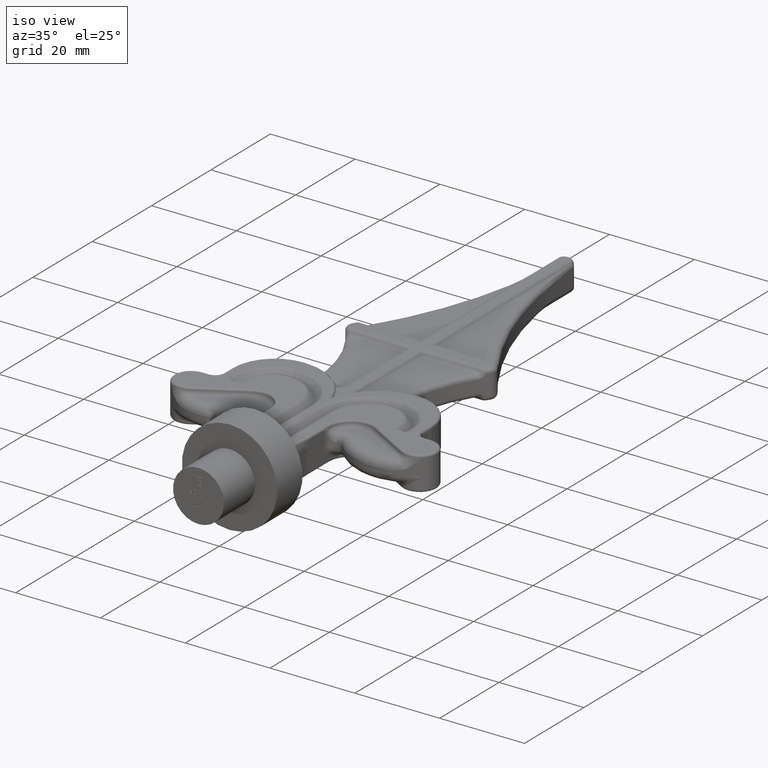
[diagram: clean part render]
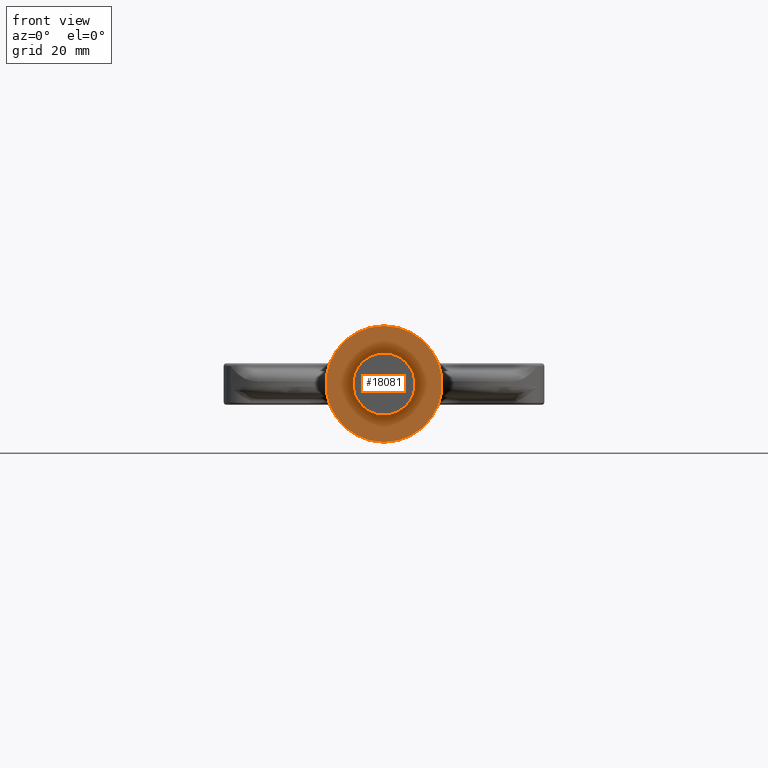
[diagram: tour spotlight — one face highlighted and labeled with its STEP entity id]
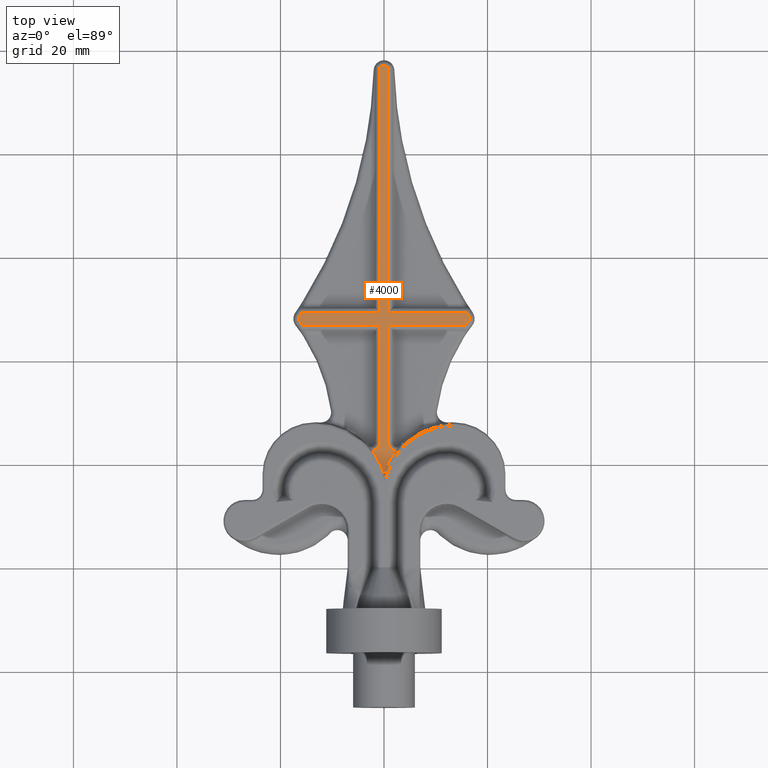
[diagram: tour spotlight — one face highlighted and labeled with its STEP entity id]
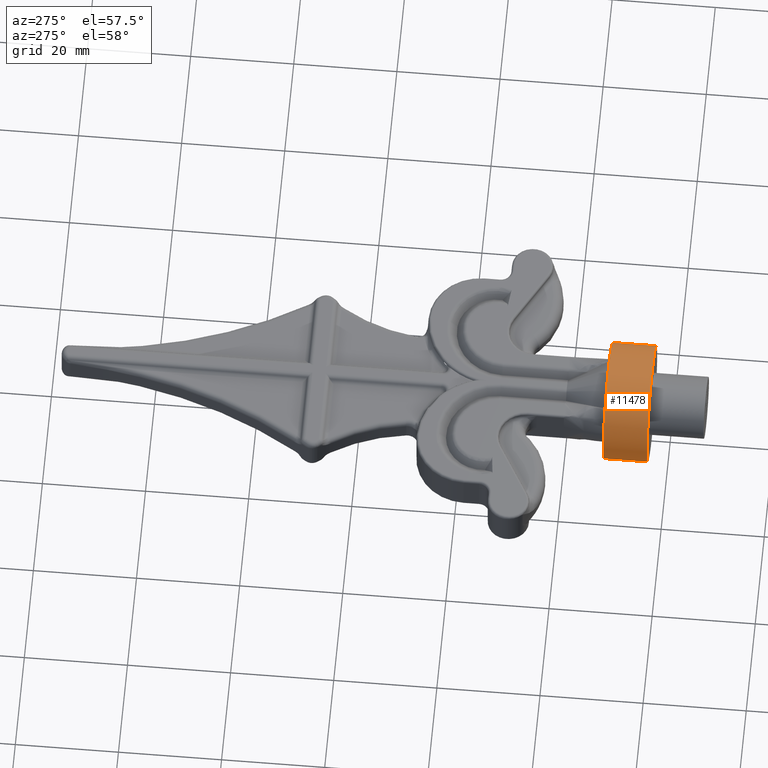
[diagram: tour spotlight — one face highlighted and labeled with its STEP entity id]
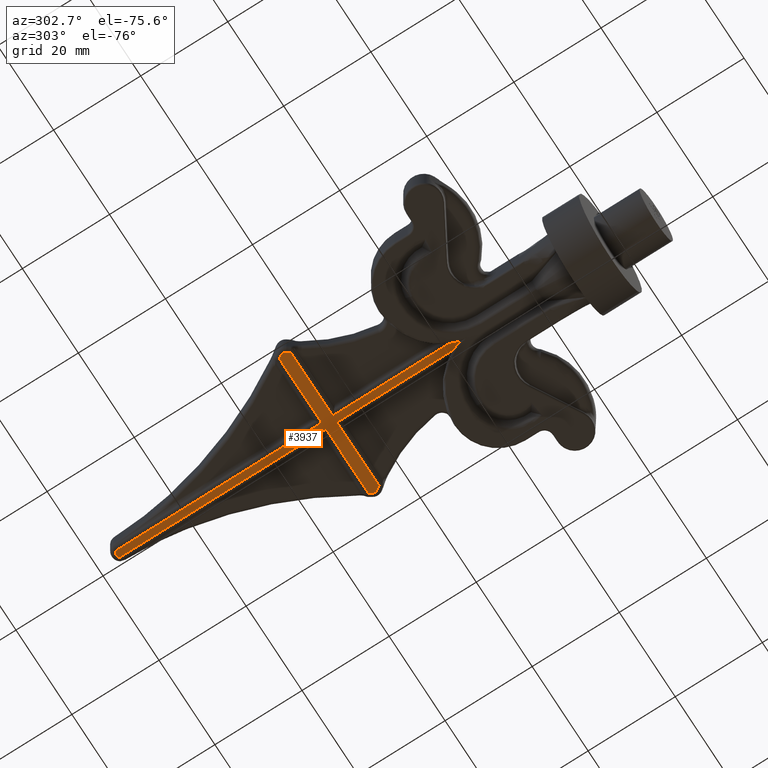
[diagram: tour spotlight — one face highlighted and labeled with its STEP entity id]
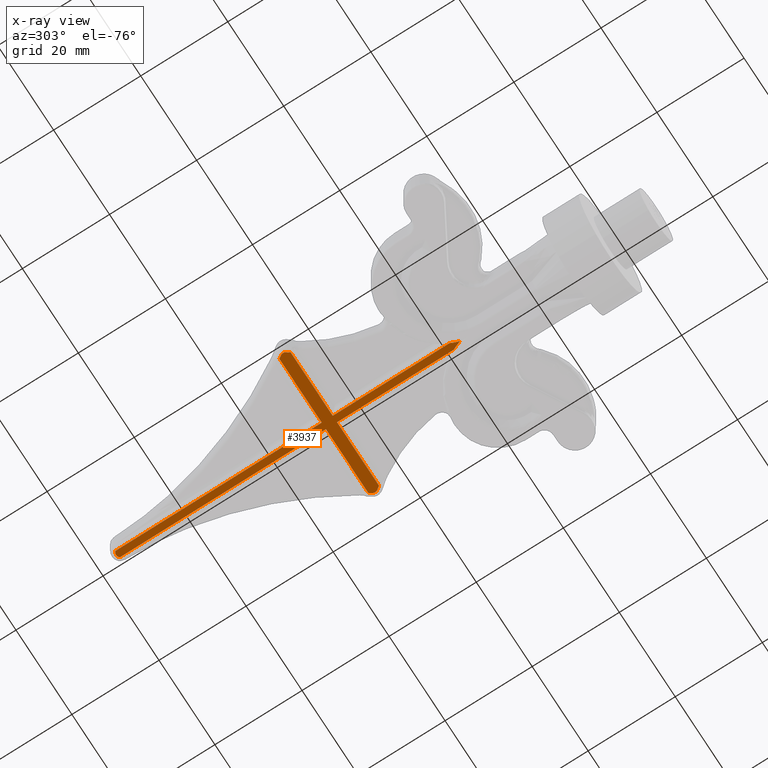
[diagram: x-ray of the same camera — body ghosted, this tour face saturated]
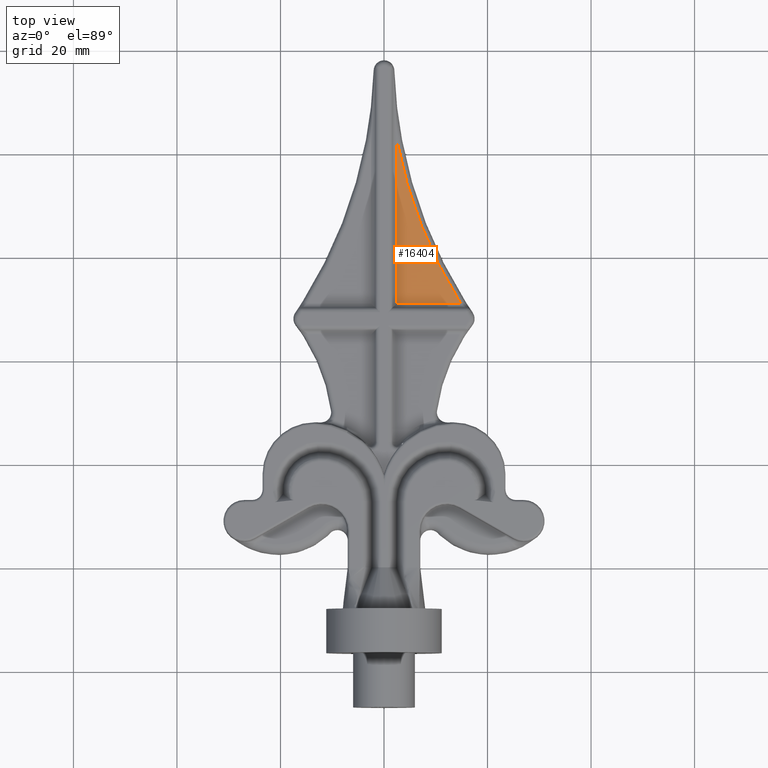
[diagram: tour spotlight — one face highlighted and labeled with its STEP entity id]
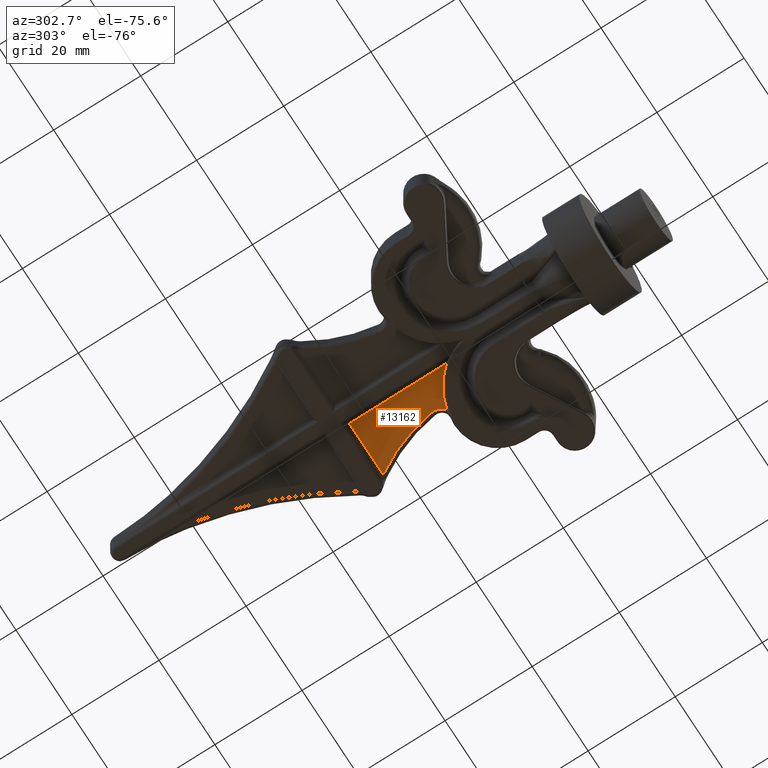
[diagram: tour spotlight — one face highlighted and labeled with its STEP entity id]
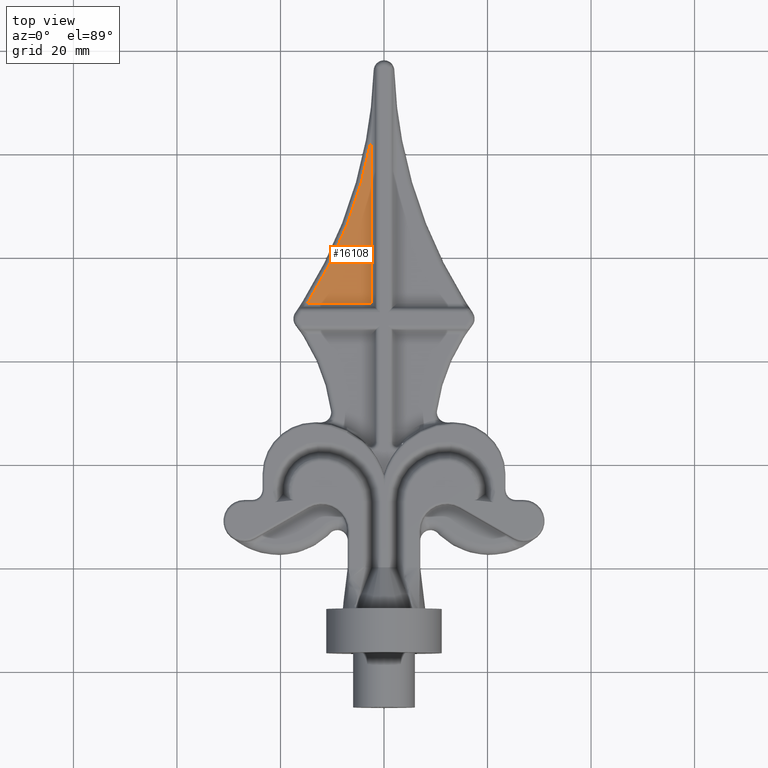
[diagram: tour spotlight — one face highlighted and labeled with its STEP entity id]
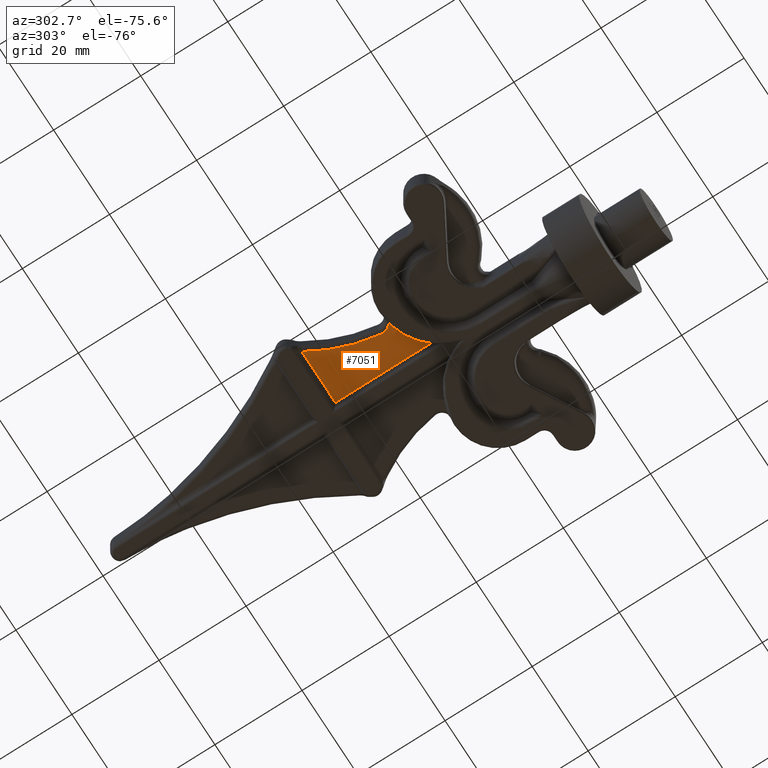
[diagram: tour spotlight — one face highlighted and labeled with its STEP entity id]
A machine part: a face-by-face anatomy tour. The part has 496 B-rep faces; the first image is the clean iso view, then the 8 largest visible faces are spotlighted one at a time (largest first), each with its STEP entity span.

Face 1 — front view, entity #18081. In plain terms, the highlighted planar face has unit normal (0, -1, 0).
Definition (entity closure, byte-faithful):
#1578 = AXIS2_PLACEMENT_3D ( 'NONE', #10821, #6553, #17103 ) ;
#1645 = EDGE_CURVE ( 'NONE', #5692, #5692, #17644, .T. ) ;
#1999 = FACE_BOUND ( 'NONE', #15357, .T. ) ;
#5224 = CARTESIAN_POINT ( 'NONE',  ( 0.000000000000000000, -16.50000000000000000, 0.000000000000000000 ) ) ;
#5692 = VERTEX_POINT ( 'NONE', #6911 ) ;
#6341 = CARTESIAN_POINT ( 'NONE',  ( 0.000000000000000000, -16.50000000000000000, 0.000000000000000000 ) ) ;
#6553 = DIRECTION ( 'NONE',  ( 0.000000000000000000, -1.000000000000000000, 0.000000000000000000 ) ) ;
#6911 = CARTESIAN_POINT ( 'NONE',  ( 0.000000000000000000, -16.50000000000000000, -6.000000000000000888 ) ) ;
#9917 = CIRCLE ( 'NONE', #13263, 11.25000000000000178 ) ;
#10821 = CARTESIAN_POINT ( 'NONE',  ( 0.000000000000000000, -16.50000000000000000, 0.000000000000000000 ) ) ;
#12764 = CARTESIAN_POINT ( 'NONE',  ( 0.000000000000000000, -16.50000000000000000, -11.25000000000000178 ) ) ;
#12788 = FACE_OUTER_BOUND ( 'NONE', #15167, .T. ) ;
#13263 = AXIS2_PLACEMENT_3D ( 'NONE', #6341, #15585, #15378 ) ;
#14295 = DIRECTION ( 'NONE',  ( 0.000000000000000000, -1.000000000000000000, 0.000000000000000000 ) ) ;
#14415 = PLANE ( 'NONE',  #18623 ) ;
#14824 = EDGE_CURVE ( 'NONE', #16771, #16771, #9917, .T. ) ;
#15167 = EDGE_LOOP ( 'NONE', ( #16647 ) ) ;
#15357 = EDGE_LOOP ( 'NONE', ( #18399 ) ) ;
#15378 = DIRECTION ( 'NONE',  ( 0.000000000000000000, 0.000000000000000000, -1.000000000000000000 ) ) ;
#15585 = DIRECTION ( 'NONE',  ( 0.000000000000000000, -1.000000000000000000, 0.000000000000000000 ) ) ;
#15823 = DIRECTION ( 'NONE',  ( 0.000000000000000000, -0.000000000000000000, -1.000000000000000000 ) ) ;
#16647 = ORIENTED_EDGE ( 'NONE', *, *, #14824, .T. ) ;
#16771 = VERTEX_POINT ( 'NONE', #12764 ) ;
#17103 = DIRECTION ( 'NONE',  ( 0.000000000000000000, 0.000000000000000000, -1.000000000000000000 ) ) ;
#17644 = CIRCLE ( 'NONE', #1578, 6.000000000000000888 ) ;
#18081 = ADVANCED_FACE ( 'NONE', ( #1999, #12788 ), #14415, .T. ) ;
#18399 = ORIENTED_EDGE ( 'NONE', *, *, #1645, .F. ) ;
#18623 = AXIS2_PLACEMENT_3D ( 'NONE', #5224, #14295, #15823 ) ;

Face 2 — top view, entity #4000. In plain terms, the highlighted planar face has unit normal (0, 0, 1).
Definition (entity closure, byte-faithful):
#152 = ORIENTED_EDGE ( 'NONE', *, *, #443, .T. ) ;
#201 = CARTESIAN_POINT ( 'NONE',  ( 16.46731085266415562, 46.77746172511388068, 3.500000000000000000 ) ) ;
#213 = LINE ( 'NONE', #8870, #4681 ) ;
#324 = CARTESIAN_POINT ( 'NONE',  ( 15.76184488787160021, 46.77746172511388068, 3.500000000000000000 ) ) ;
#443 = EDGE_CURVE ( 'NONE', #5529, #1710, #1481, .T. ) ;
#472 = CARTESIAN_POINT ( 'NONE',  ( -16.29608303855921037, 47.49860504358699842, 3.500000000000000000 ) ) ;
#557 = LINE ( 'NONE', #9453, #11545 ) ;
#622 = VERTEX_POINT ( 'NONE', #5714 ) ;
#625 = ORIENTED_EDGE ( 'NONE', *, *, #8301, .T. ) ;
#628 = LINE ( 'NONE', #9689, #5081 ) ;
#800 = CARTESIAN_POINT ( 'NONE',  ( -15.76184488787159665, 46.77746172511387357, 3.500000000000000000 ) ) ;
#817 = AXIS2_PLACEMENT_3D ( 'NONE', #5077, #6425, #3512 ) ;
#1053 = DIRECTION ( 'NONE',  ( 1.000000000000000000, 0.000000000000000000, 0.000000000000000000 ) ) ;
#1084 = CIRCLE ( 'NONE', #817, 1.000000000000009548 ) ;
#1163 = VERTEX_POINT ( 'NONE', #4331 ) ;
#1174 = VECTOR ( 'NONE', #9763, 1000.000000000000000 ) ;
#1207 = CARTESIAN_POINT ( 'NONE',  ( -16.33004306381300808, 48.66149175172508023, 3.500000000000000000 ) ) ;
#1210 = AXIS2_PLACEMENT_3D ( 'NONE', #13090, #8823, #14820 ) ;
#1288 = EDGE_CURVE ( 'NONE', #14423, #8830, #6823, .T. ) ;
#1358 = EDGE_CURVE ( 'NONE', #9479, #8669, #9876, .T. ) ;
#1365 = CARTESIAN_POINT ( 'NONE',  ( 45.10441830320194612, 25.59832475904494942, 3.500000000000000000 ) ) ;
#1481 = CIRCLE ( 'NONE', #4298, 90.51719354643033455 ) ;
#1710 = VERTEX_POINT ( 'NONE', #12409 ) ;
#1824 = CIRCLE ( 'NONE', #3074, 1.732050807568877415 ) ;
#1959 = ORIENTED_EDGE ( 'NONE', *, *, #11768, .T. ) ;
#1967 = ORIENTED_EDGE ( 'NONE', *, *, #15068, .T. ) ;
#2336 = DIRECTION ( 'NONE',  ( -0.000000000000000000, -0.000000000000000000, -1.000000000000000000 ) ) ;
#2467 = DIRECTION ( 'NONE',  ( 0.000000000000000000, 0.000000000000000000, 1.000000000000000000 ) ) ;
#2765 = CARTESIAN_POINT ( 'NONE',  ( -0.7679491924311232509, 24.28074325754674234, 3.500000000000000000 ) ) ;
#3074 = AXIS2_PLACEMENT_3D ( 'NONE', #14694, #5733, #1053 ) ;
#3233 = CARTESIAN_POINT ( 'NONE',  ( 0.7679491924311226958, 46.04541091754499860, 3.500000000000000000 ) ) ;
#3353 = CARTESIAN_POINT ( 'NONE',  ( 15.50000000000000711, 48.10379244903953122, 3.500000000000000000 ) ) ;
#3418 = EDGE_CURVE ( 'NONE', #7647, #622, #213, .T. ) ;
#3494 = CARTESIAN_POINT ( 'NONE',  ( 2.500000000000000444, 24.28074325754674234, 3.500000000000000000 ) ) ;
#3512 = DIRECTION ( 'NONE',  ( 1.000000000000000000, 0.000000000000000000, 0.000000000000000000 ) ) ;
#3537 = EDGE_CURVE ( 'NONE', #1163, #14423, #16682, .T. ) ;
#3630 = CIRCLE ( 'NONE', #11472, 14.05394023361774813 ) ;
#3655 = CARTESIAN_POINT ( 'NONE',  ( 0.000000000000000000, 18.00000000000000355, 3.500000000000000000 ) ) ;
#3818 = DIRECTION ( 'NONE',  ( 1.000000000000000000, 0.000000000000000000, 0.000000000000000000 ) ) ;
#4000 = ADVANCED_FACE ( 'NONE', ( #13586 ), #7235, .T. ) ;
#4298 = AXIS2_PLACEMENT_3D ( 'NONE', #6976, #10115, #9927 ) ;
#4331 = CARTESIAN_POINT ( 'NONE',  ( 2.341040345879629392, 22.55600216730683627, 3.500000000000000000 ) ) ;
#4681 = VECTOR ( 'NONE', #16195, 1000.000000000000000 ) ;
#4751 = CARTESIAN_POINT ( 'NONE',  ( 0.7679491924311226958, 24.28074325754674234, 3.500000000000000000 ) ) ;
#4958 = EDGE_CURVE ( 'NONE', #16523, #16259, #557, .T. ) ;
#5077 = CARTESIAN_POINT ( 'NONE',  ( 0.000000000000000000, 96.00000000000000000, 3.500000000000000000 ) ) ;
#5081 = VECTOR ( 'NONE', #5311, 1000.000000000000000 ) ;
#5125 = CARTESIAN_POINT ( 'NONE',  ( 1.500000000000000666, 49.31336010997613784, 3.500000000000000000 ) ) ;
#5277 = ORIENTED_EDGE ( 'NONE', *, *, #7619, .T. ) ;
#5311 = DIRECTION ( 'NONE',  ( -1.000000000000000000, 0.000000000000000000, 0.000000000000000000 ) ) ;
#5331 = ORIENTED_EDGE ( 'NONE', *, *, #7507, .T. ) ;
#5391 = CIRCLE ( 'NONE', #16236, 90.51719354643033455 ) ;
#5474 = CARTESIAN_POINT ( 'NONE',  ( 0.7679491924311226958, 46.77746172511388068, 3.500000000000000000 ) ) ;
#5529 = VERTEX_POINT ( 'NONE', #17670 ) ;
#5698 = ORIENTED_EDGE ( 'NONE', *, *, #9197, .T. ) ;
#5714 = CARTESIAN_POINT ( 'NONE',  ( -0.7679491924311224738, 49.31336010997613784, 3.500000000000000000 ) ) ;
#5733 = DIRECTION ( 'NONE',  ( -0.000000000000000000, -0.000000000000000000, -1.000000000000000000 ) ) ;
#6248 = VERTEX_POINT ( 'NONE', #19322 ) ;
#6319 = AXIS2_PLACEMENT_3D ( 'NONE', #3494, #15448, #13977 ) ;
#6425 = DIRECTION ( 'NONE',  ( 0.000000000000000000, 0.000000000000000000, 1.000000000000000000 ) ) ;
#6476 = DIRECTION ( 'NONE',  ( -0.000000000000000000, -0.000000000000000000, -1.000000000000000000 ) ) ;
#6758 = CARTESIAN_POINT ( 'NONE',  ( 13.46148123164811494, 13.96245629867796900, 3.500000000000000000 ) ) ;
#6823 = LINE ( 'NONE', #3233, #17195 ) ;
#6976 = CARTESIAN_POINT ( 'NONE',  ( 91.46321172284538648, 99.14286747362201879, 3.500000000000000000 ) ) ;
#7106 = AXIS2_PLACEMENT_3D ( 'NONE', #11549, #2467, #17439 ) ;
#7235 = PLANE ( 'NONE',  #1210 ) ;
#7358 = LINE ( 'NONE', #201, #9236 ) ;
#7496 = DIRECTION ( 'NONE',  ( -0.000000000000000000, -0.000000000000000000, -1.000000000000000000 ) ) ;
#7507 = EDGE_CURVE ( 'NONE', #11642, #6248, #15518, .T. ) ;
#7576 = ORIENTED_EDGE ( 'NONE', *, *, #13487, .T. ) ;
#7619 = EDGE_CURVE ( 'NONE', #19109, #14692, #5391, .T. ) ;
#7647 = VERTEX_POINT ( 'NONE', #15338 ) ;
#7916 = LINE ( 'NONE', #5125, #17583 ) ;
#7978 = DIRECTION ( 'NONE',  ( 0.000000000000000000, 1.000000000000000000, -0.000000000000000000 ) ) ;
#8042 = ORIENTED_EDGE ( 'NONE', *, *, #15874, .T. ) ;
#8204 = EDGE_LOOP ( 'NONE', ( #10850, #11542, #8367, #1959, #5277, #8042, #12306, #625, #1967, #11510, #16720, #7576, #17995, #15695, #18011, #5331, #13439, #152, #5698 ) ) ;
#8301 = EDGE_CURVE ( 'NONE', #17518, #10579, #8417, .T. ) ;
#8367 = ORIENTED_EDGE ( 'NONE', *, *, #3418, .T. ) ;
#8393 = CARTESIAN_POINT ( 'NONE',  ( 0.7679491924311226958, 96.64051076325414158, 3.500000000000000000 ) ) ;
#8417 = LINE ( 'NONE', #15784, #1174 ) ;
#8669 = VERTEX_POINT ( 'NONE', #3655 ) ;
#8823 = DIRECTION ( 'NONE',  ( 0.000000000000000000, 0.000000000000000000, 1.000000000000000000 ) ) ;
#8830 = VERTEX_POINT ( 'NONE', #5474 ) ;
#8870 = CARTESIAN_POINT ( 'NONE',  ( -0.7679491924311224738, 50.04541091754501991, 3.500000000000000000 ) ) ;
#8988 = DIRECTION ( 'NONE',  ( 1.000000000000000000, -0.000000000000000000, 0.000000000000000000 ) ) ;
#9080 = AXIS2_PLACEMENT_3D ( 'NONE', #3353, #13849, #17997 ) ;
#9197 = EDGE_CURVE ( 'NONE', #1710, #16523, #7916, .T. ) ;
#9236 = VECTOR ( 'NONE', #8988, 1000.000000000000000 ) ;
#9292 = CIRCLE ( 'NONE', #7106, 1.000000000000013101 ) ;
#9293 = EDGE_CURVE ( 'NONE', #9359, #17518, #19481, .T. ) ;
#9359 = VERTEX_POINT ( 'NONE', #472 ) ;
#9394 = DIRECTION ( 'NONE',  ( -1.375964864225493937E-17, 1.000000000000000000, 0.000000000000000000 ) ) ;
#9453 = CARTESIAN_POINT ( 'NONE',  ( 0.7679491924311226958, 97.32287565553231445, 3.500000000000000000 ) ) ;
#9479 = VERTEX_POINT ( 'NONE', #9821 ) ;
#9689 = CARTESIAN_POINT ( 'NONE',  ( -16.61157379719141503, 49.31336010997613784, 3.500000000000000000 ) ) ;
#9763 = DIRECTION ( 'NONE',  ( 1.000000000000000000, -0.000000000000000000, 0.000000000000000000 ) ) ;
#9821 = CARTESIAN_POINT ( 'NONE',  ( -2.341040345879629392, 22.55600216730683627, 3.500000000000000000 ) ) ;
#9876 = CIRCLE ( 'NONE', #18060, 14.05394023361774813 ) ;
#9927 = DIRECTION ( 'NONE',  ( 1.000000000000000000, 0.000000000000000000, 0.000000000000000000 ) ) ;
#10115 = DIRECTION ( 'NONE',  ( -0.000000000000000000, -0.000000000000000000, -1.000000000000000000 ) ) ;
#10414 = AXIS2_PLACEMENT_3D ( 'NONE', #12537, #6476, #14118 ) ;
#10579 = VERTEX_POINT ( 'NONE', #13523 ) ;
#10806 = EDGE_CURVE ( 'NONE', #13638, #9479, #1824, .T. ) ;
#10850 = ORIENTED_EDGE ( 'NONE', *, *, #4958, .T. ) ;
#10931 = DIRECTION ( 'NONE',  ( 1.000000000000000000, 5.307629620380207976E-15, 0.000000000000000000 ) ) ;
#11165 = EDGE_CURVE ( 'NONE', #6248, #5529, #11402, .T. ) ;
#11402 = CIRCLE ( 'NONE', #9080, 1.000000000000014655 ) ;
#11472 = AXIS2_PLACEMENT_3D ( 'NONE', #6758, #2336, #3818 ) ;
#11477 = CARTESIAN_POINT ( 'NONE',  ( -0.7679491924311232509, 24.28074325754674234, 3.500000000000000000 ) ) ;
#11510 = ORIENTED_EDGE ( 'NONE', *, *, #10806, .T. ) ;
#11542 = ORIENTED_EDGE ( 'NONE', *, *, #12554, .T. ) ;
#11545 = VECTOR ( 'NONE', #9394, 1000.000000000000000 ) ;
#11549 = CARTESIAN_POINT ( 'NONE',  ( -15.50000000000000711, 48.10379244903953122, 3.500000000000000000 ) ) ;
#11642 = VERTEX_POINT ( 'NONE', #324 ) ;
#11768 = EDGE_CURVE ( 'NONE', #622, #19109, #628, .T. ) ;
#11794 = AXIS2_PLACEMENT_3D ( 'NONE', #1365, #14614, #13100 ) ;
#12306 = ORIENTED_EDGE ( 'NONE', *, *, #9293, .T. ) ;
#12409 = CARTESIAN_POINT ( 'NONE',  ( 15.89613871205389550, 49.31336010997613784, 3.500000000000000000 ) ) ;
#12537 = CARTESIAN_POINT ( 'NONE',  ( -45.10441830320194612, 25.59832475904494942, 3.500000000000000000 ) ) ;
#12554 = EDGE_CURVE ( 'NONE', #16259, #7647, #1084, .T. ) ;
#12663 = DIRECTION ( 'NONE',  ( -1.000000000000000000, 0.000000000000000000, 0.000000000000000000 ) ) ;
#12846 = LINE ( 'NONE', #2765, #14992 ) ;
#13090 = CARTESIAN_POINT ( 'NONE',  ( 0.000000000000000000, 96.00000000000000000, 3.500000000000000000 ) ) ;
#13100 = DIRECTION ( 'NONE',  ( 1.000000000000000000, -6.749523579777153320E-14, 0.000000000000000000 ) ) ;
#13439 = ORIENTED_EDGE ( 'NONE', *, *, #11165, .T. ) ;
#13487 = EDGE_CURVE ( 'NONE', #8669, #1163, #3630, .T. ) ;
#13523 = CARTESIAN_POINT ( 'NONE',  ( -0.7679491924311252493, 46.77746172511387357, 3.500000000000000000 ) ) ;
#13586 = FACE_OUTER_BOUND ( 'NONE', #8204, .T. ) ;
#13638 = VERTEX_POINT ( 'NONE', #11477 ) ;
#13849 = DIRECTION ( 'NONE',  ( 0.000000000000000000, 0.000000000000000000, 1.000000000000000000 ) ) ;
#13969 = CARTESIAN_POINT ( 'NONE',  ( -13.46148123164811494, 13.96245629867796900, 3.500000000000000000 ) ) ;
#13977 = DIRECTION ( 'NONE',  ( 1.000000000000000000, 0.000000000000000000, 0.000000000000000000 ) ) ;
#14105 = DIRECTION ( 'NONE',  ( -0.000000000000000000, -0.000000000000000000, -1.000000000000000000 ) ) ;
#14118 = DIRECTION ( 'NONE',  ( 1.000000000000000000, 1.003799884662880697E-13, 0.000000000000000000 ) ) ;
#14423 = VERTEX_POINT ( 'NONE', #4751 ) ;
#14614 = DIRECTION ( 'NONE',  ( -0.000000000000000000, -0.000000000000000000, -1.000000000000000000 ) ) ;
#14692 = VERTEX_POINT ( 'NONE', #1207 ) ;
#14694 = CARTESIAN_POINT ( 'NONE',  ( -2.499999999999999556, 24.28074325754674234, 3.500000000000000000 ) ) ;
#14820 = DIRECTION ( 'NONE',  ( 1.000000000000000000, 0.000000000000000000, -0.000000000000000000 ) ) ;
#14923 = CARTESIAN_POINT ( 'NONE',  ( 0.7679491924311233619, 49.31336010997613784, 3.500000000000000000 ) ) ;
#14992 = VECTOR ( 'NONE', #16109, 1000.000000000000000 ) ;
#15068 = EDGE_CURVE ( 'NONE', #10579, #13638, #12846, .T. ) ;
#15211 = DIRECTION ( 'NONE',  ( 1.000000000000000000, -7.052563321376199163E-15, 0.000000000000000000 ) ) ;
#15338 = CARTESIAN_POINT ( 'NONE',  ( -0.7679491924311226958, 96.64051076325414158, 3.500000000000000000 ) ) ;
#15448 = DIRECTION ( 'NONE',  ( -0.000000000000000000, -0.000000000000000000, -1.000000000000000000 ) ) ;
#15518 = CIRCLE ( 'NONE', #11794, 36.18760087739388354 ) ;
#15695 = ORIENTED_EDGE ( 'NONE', *, *, #1288, .T. ) ;
#15784 = CARTESIAN_POINT ( 'NONE',  ( -1.500000000000003109, 46.77746172511387357, 3.500000000000000000 ) ) ;
#15874 = EDGE_CURVE ( 'NONE', #14692, #9359, #9292, .T. ) ;
#16043 = CARTESIAN_POINT ( 'NONE',  ( -15.89613871205389906, 49.31336010997613784, 3.500000000000000000 ) ) ;
#16109 = DIRECTION ( 'NONE',  ( 9.278114061567793715E-17, -1.000000000000000000, 0.000000000000000000 ) ) ;
#16195 = DIRECTION ( 'NONE',  ( 4.586549547418313381E-18, -1.000000000000000000, 0.000000000000000000 ) ) ;
#16236 = AXIS2_PLACEMENT_3D ( 'NONE', #16478, #7496, #15211 ) ;
#16259 = VERTEX_POINT ( 'NONE', #8393 ) ;
#16478 = CARTESIAN_POINT ( 'NONE',  ( -91.46321172284538648, 99.14286747362201879, 3.500000000000000000 ) ) ;
#16523 = VERTEX_POINT ( 'NONE', #14923 ) ;
#16682 = CIRCLE ( 'NONE', #6319, 1.732050807568876971 ) ;
#16720 = ORIENTED_EDGE ( 'NONE', *, *, #1358, .T. ) ;
#17195 = VECTOR ( 'NONE', #7978, 1000.000000000000000 ) ;
#17439 = DIRECTION ( 'NONE',  ( 1.000000000000000000, 0.000000000000000000, 0.000000000000000000 ) ) ;
#17518 = VERTEX_POINT ( 'NONE', #800 ) ;
#17583 = VECTOR ( 'NONE', #12663, 1000.000000000000000 ) ;
#17670 = CARTESIAN_POINT ( 'NONE',  ( 16.33004306381301163, 48.66149175172508023, 3.500000000000000000 ) ) ;
#17995 = ORIENTED_EDGE ( 'NONE', *, *, #3537, .T. ) ;
#17997 = DIRECTION ( 'NONE',  ( 1.000000000000000000, 0.000000000000000000, 0.000000000000000000 ) ) ;
#18011 = ORIENTED_EDGE ( 'NONE', *, *, #18821, .T. ) ;
#18060 = AXIS2_PLACEMENT_3D ( 'NONE', #13969, #14105, #10931 ) ;
#18821 = EDGE_CURVE ( 'NONE', #8830, #11642, #7358, .T. ) ;
#19109 = VERTEX_POINT ( 'NONE', #16043 ) ;
#19322 = CARTESIAN_POINT ( 'NONE',  ( 16.29608303855921747, 47.49860504358698421, 3.500000000000000000 ) ) ;
#19481 = CIRCLE ( 'NONE', #10414, 36.18760087739388354 ) ;

Face 3 — auxiliary view, entity #11478. In plain terms, the highlighted cylindrical surface (bore or boss wall) has radius 11.25 mm, axis along (-0, 1, -0).
Definition (entity closure, byte-faithful):
#1040 = CARTESIAN_POINT ( 'NONE',  ( 0.000000000000000000, -8.000000000000000000, -11.25000000000000178 ) ) ;
#5299 = DIRECTION ( 'NONE',  ( 0.000000000000000000, 0.000000000000000000, -1.000000000000000000 ) ) ;
#6341 = CARTESIAN_POINT ( 'NONE',  ( 0.000000000000000000, -16.50000000000000000, 0.000000000000000000 ) ) ;
#6413 = EDGE_LOOP ( 'NONE', ( #7612 ) ) ;
#6853 = CARTESIAN_POINT ( 'NONE',  ( 0.000000000000000000, -8.000000000000000000, 0.000000000000000000 ) ) ;
#7146 = CARTESIAN_POINT ( 'NONE',  ( 0.000000000000000000, -16.50000000000000000, 0.000000000000000000 ) ) ;
#7564 = AXIS2_PLACEMENT_3D ( 'NONE', #7146, #19197, #11538 ) ;
#7612 = ORIENTED_EDGE ( 'NONE', *, *, #14824, .F. ) ;
#8304 = DIRECTION ( 'NONE',  ( 0.000000000000000000, -1.000000000000000000, 0.000000000000000000 ) ) ;
#9917 = CIRCLE ( 'NONE', #13263, 11.25000000000000178 ) ;
#10754 = ORIENTED_EDGE ( 'NONE', *, *, #14162, .T. ) ;
#11358 = AXIS2_PLACEMENT_3D ( 'NONE', #6853, #8304, #5299 ) ;
#11478 = ADVANCED_FACE ( 'NONE', ( #11657, #12365 ), #19452, .T. ) ;
#11538 = DIRECTION ( 'NONE',  ( 0.000000000000000000, 0.000000000000000000, 1.000000000000000000 ) ) ;
#11657 = FACE_OUTER_BOUND ( 'NONE', #6413, .T. ) ;
#12365 = FACE_OUTER_BOUND ( 'NONE', #18698, .T. ) ;
#12764 = CARTESIAN_POINT ( 'NONE',  ( 0.000000000000000000, -16.50000000000000000, -11.25000000000000178 ) ) ;
#13263 = AXIS2_PLACEMENT_3D ( 'NONE', #6341, #15585, #15378 ) ;
#14162 = EDGE_CURVE ( 'NONE', #14898, #14898, #17029, .T. ) ;
#14824 = EDGE_CURVE ( 'NONE', #16771, #16771, #9917, .T. ) ;
#14898 = VERTEX_POINT ( 'NONE', #1040 ) ;
#15378 = DIRECTION ( 'NONE',  ( 0.000000000000000000, 0.000000000000000000, -1.000000000000000000 ) ) ;
#15585 = DIRECTION ( 'NONE',  ( 0.000000000000000000, -1.000000000000000000, 0.000000000000000000 ) ) ;
#16771 = VERTEX_POINT ( 'NONE', #12764 ) ;
#17029 = CIRCLE ( 'NONE', #11358, 11.25000000000000178 ) ;
#18698 = EDGE_LOOP ( 'NONE', ( #10754 ) ) ;
#19197 = DIRECTION ( 'NONE',  ( -0.000000000000000000, 1.000000000000000000, -0.000000000000000000 ) ) ;
#19452 = CYLINDRICAL_SURFACE ( 'NONE', #7564, 11.25000000000000178 ) ;

Face 4 — auxiliary view, entity #3937. An x-ray twin of the same camera follows (body ghosted, this face saturated) — the face is partly hidden behind the body. In plain terms, the highlighted planar face has unit normal (0, 0, -1).
Definition (entity closure, byte-faithful):
#9 = EDGE_CURVE ( 'NONE', #6209, #2278, #7554, .T. ) ;
#102 = VECTOR ( 'NONE', #10543, 1000.000000000000000 ) ;
#151 = LINE ( 'NONE', #18296, #7399 ) ;
#450 = CARTESIAN_POINT ( 'NONE',  ( 15.89613871205389195, 49.31336010997614494, -3.500000000000000000 ) ) ;
#514 = CARTESIAN_POINT ( 'NONE',  ( 0.7679491924311218076, 19.99465991422936639, -3.500000000000000000 ) ) ;
#550 = CARTESIAN_POINT ( 'NONE',  ( -0.7679491924311245832, 46.04541091754499149, -3.500000000000000000 ) ) ;
#588 = CARTESIAN_POINT ( 'NONE',  ( 0.7679491924240794409, 96.64051076326259704, -3.500000000000000000 ) ) ;
#943 = ORIENTED_EDGE ( 'NONE', *, *, #2771, .T. ) ;
#958 = EDGE_CURVE ( 'NONE', #14377, #10632, #11295, .T. ) ;
#1075 = CARTESIAN_POINT ( 'NONE',  ( 45.10441830320194612, 25.59832475904494942, -3.500000000000000000 ) ) ;
#1319 = EDGE_CURVE ( 'NONE', #2278, #10433, #18838, .T. ) ;
#1492 = VERTEX_POINT ( 'NONE', #7091 ) ;
#1538 = CARTESIAN_POINT ( 'NONE',  ( 15.76184488787160376, 46.77746172511388068, -3.500000000000000000 ) ) ;
#1728 = VECTOR ( 'NONE', #9957, 1000.000000000000000 ) ;
#1849 = CARTESIAN_POINT ( 'NONE',  ( -15.76184488787159310, 46.77746172511387357, -3.500000000000000000 ) ) ;
#1866 = AXIS2_PLACEMENT_3D ( 'NONE', #5743, #17209, #15779 ) ;
#1963 = EDGE_CURVE ( 'NONE', #10632, #2984, #4483, .T. ) ;
#2039 = ORIENTED_EDGE ( 'NONE', *, *, #17178, .T. ) ;
#2073 = LINE ( 'NONE', #550, #19231 ) ;
#2278 = VERTEX_POINT ( 'NONE', #588 ) ;
#2290 = CARTESIAN_POINT ( 'NONE',  ( 0.000000000000000000, 96.00000000000000000, -3.500000000000000000 ) ) ;
#2523 = VECTOR ( 'NONE', #9676, 1000.000000000000000 ) ;
#2771 = EDGE_CURVE ( 'NONE', #16132, #2993, #15761, .T. ) ;
#2772 = CARTESIAN_POINT ( 'NONE',  ( -15.50000000000000711, 48.10379244903953122, -3.500000000000000000 ) ) ;
#2972 = DIRECTION ( 'NONE',  ( -1.000000000000000000, 0.000000000000000000, 0.000000000000000000 ) ) ;
#2984 = VERTEX_POINT ( 'NONE', #1538 ) ;
#2993 = VERTEX_POINT ( 'NONE', #12020 ) ;
#3123 = CARTESIAN_POINT ( 'NONE',  ( -0.7679491924311233619, 96.64051076325421263, -3.500000000000000000 ) ) ;
#3208 = VERTEX_POINT ( 'NONE', #9898 ) ;
#3603 = CARTESIAN_POINT ( 'NONE',  ( 16.29608303855920681, 47.49860504358699131, -3.500000000000000000 ) ) ;
#3718 = CARTESIAN_POINT ( 'NONE',  ( -91.46321172284538648, 99.14286747362201879, -3.500000000000000000 ) ) ;
#3937 = ADVANCED_FACE ( 'NONE', ( #4177 ), #11494, .T. ) ;
#4177 = FACE_OUTER_BOUND ( 'NONE', #8699, .T. ) ;
#4179 = CARTESIAN_POINT ( 'NONE',  ( 0.000000000000000000, 96.00000000000000000, -3.500000000000000000 ) ) ;
#4240 = ORIENTED_EDGE ( 'NONE', *, *, #14096, .T. ) ;
#4483 = CIRCLE ( 'NONE', #11609, 36.18760087739388354 ) ;
#4518 = ORIENTED_EDGE ( 'NONE', *, *, #15458, .T. ) ;
#5198 = DIRECTION ( 'NONE',  ( 0.000000000000000000, 0.000000000000000000, -1.000000000000000000 ) ) ;
#5441 = CARTESIAN_POINT ( 'NONE',  ( 0.7679491924311213635, 49.31336010997613784, -3.500000000000000000 ) ) ;
#5743 = CARTESIAN_POINT ( 'NONE',  ( 13.46148123164811494, 13.96245629867796900, -3.500000000000000000 ) ) ;
#6209 = VERTEX_POINT ( 'NONE', #3123 ) ;
#6487 = CIRCLE ( 'NONE', #13102, 14.05394023361774813 ) ;
#6545 = CARTESIAN_POINT ( 'NONE',  ( 0.000000000000000000, 18.00000000000000355, -3.500000000000000000 ) ) ;
#6645 = LINE ( 'NONE', #19459, #102 ) ;
#6702 = AXIS2_PLACEMENT_3D ( 'NONE', #9857, #10045, #12823 ) ;
#6713 = ORIENTED_EDGE ( 'NONE', *, *, #13788, .T. ) ;
#7091 = CARTESIAN_POINT ( 'NONE',  ( 0.7679491924311213635, 46.77746172511388068, -3.500000000000000000 ) ) ;
#7194 = DIRECTION ( 'NONE',  ( -1.000000000000000000, 0.000000000000000000, 0.000000000000000000 ) ) ;
#7399 = VECTOR ( 'NONE', #15477, 1000.000000000000000 ) ;
#7554 = CIRCLE ( 'NONE', #14492, 1.000000000000009548 ) ;
#7696 = ORIENTED_EDGE ( 'NONE', *, *, #17465, .F. ) ;
#7746 = ORIENTED_EDGE ( 'NONE', *, *, #13257, .T. ) ;
#7800 = CARTESIAN_POINT ( 'NONE',  ( -15.89613871205389195, 49.31336010997613784, -3.500000000000000000 ) ) ;
#8205 = ORIENTED_EDGE ( 'NONE', *, *, #16723, .T. ) ;
#8309 = ORIENTED_EDGE ( 'NONE', *, *, #1963, .T. ) ;
#8332 = DIRECTION ( 'NONE',  ( -1.000000000000000000, 0.000000000000000000, 0.000000000000000000 ) ) ;
#8684 = EDGE_CURVE ( 'NONE', #17456, #9261, #18071, .T. ) ;
#8699 = EDGE_LOOP ( 'NONE', ( #15415, #4518, #7696, #14256, #10387, #2039, #943, #9499, #4240, #17950, #7746, #13761, #16919, #6713, #8205, #15677, #8309 ) ) ;
#8808 = LINE ( 'NONE', #11581, #16361 ) ;
#8984 = CARTESIAN_POINT ( 'NONE',  ( -13.46148123164811494, 13.96245629867796900, -3.500000000000000000 ) ) ;
#9261 = VERTEX_POINT ( 'NONE', #17212 ) ;
#9266 = AXIS2_PLACEMENT_3D ( 'NONE', #14164, #18454, #14039 ) ;
#9499 = ORIENTED_EDGE ( 'NONE', *, *, #16414, .T. ) ;
#9676 = DIRECTION ( 'NONE',  ( 0.000000000000000000, -1.000000000000000000, -0.000000000000000000 ) ) ;
#9796 = VERTEX_POINT ( 'NONE', #450 ) ;
#9857 = CARTESIAN_POINT ( 'NONE',  ( -45.10441830320194612, 25.59832475904494942, -3.500000000000000000 ) ) ;
#9892 = VERTEX_POINT ( 'NONE', #514 ) ;
#9898 = CARTESIAN_POINT ( 'NONE',  ( -16.33004306381301163, 48.66149175172508023, -3.500000000000000000 ) ) ;
#9957 = DIRECTION ( 'NONE',  ( 1.000000000000000000, -0.000000000000000000, -0.000000000000000000 ) ) ;
#10045 = DIRECTION ( 'NONE',  ( -0.000000000000000000, -0.000000000000000000, 1.000000000000000000 ) ) ;
#10150 = EDGE_CURVE ( 'NONE', #12701, #18246, #2073, .T. ) ;
#10358 = DIRECTION ( 'NONE',  ( 0.000000000000000000, 0.000000000000000000, -1.000000000000000000 ) ) ;
#10383 = AXIS2_PLACEMENT_3D ( 'NONE', #2772, #12985, #14511 ) ;
#10387 = ORIENTED_EDGE ( 'NONE', *, *, #10150, .T. ) ;
#10433 = VERTEX_POINT ( 'NONE', #5441 ) ;
#10496 = CIRCLE ( 'NONE', #10383, 1.000000000000014655 ) ;
#10543 = DIRECTION ( 'NONE',  ( -1.000000000000000000, -0.000000000000000000, -0.000000000000000000 ) ) ;
#10632 = VERTEX_POINT ( 'NONE', #3603 ) ;
#10693 = CIRCLE ( 'NONE', #1866, 14.05394023361774813 ) ;
#10716 = CARTESIAN_POINT ( 'NONE',  ( 16.33004306381301163, 48.66149175172508023, -3.500000000000000000 ) ) ;
#10822 = DIRECTION ( 'NONE',  ( -9.278114061567793715E-17, 1.000000000000000000, -0.000000000000000000 ) ) ;
#10922 = DIRECTION ( 'NONE',  ( -1.000000000000000000, 0.000000000000000000, 0.000000000000000000 ) ) ;
#11186 = EDGE_CURVE ( 'NONE', #12701, #13704, #6487, .T. ) ;
#11295 = CIRCLE ( 'NONE', #12721, 1.000000000000013101 ) ;
#11494 = PLANE ( 'NONE',  #13539 ) ;
#11514 = DIRECTION ( 'NONE',  ( -4.586549547418313381E-18, 1.000000000000000000, -0.000000000000000000 ) ) ;
#11581 = CARTESIAN_POINT ( 'NONE',  ( -0.7679491924311233619, 96.86602540378444814, -3.500000000000000000 ) ) ;
#11609 = AXIS2_PLACEMENT_3D ( 'NONE', #1075, #12926, #13058 ) ;
#12020 = CARTESIAN_POINT ( 'NONE',  ( -16.29608303855921037, 47.49860504358699842, -3.500000000000000000 ) ) ;
#12590 = DIRECTION ( 'NONE',  ( 1.375964864225493937E-17, -1.000000000000000000, -0.000000000000000000 ) ) ;
#12701 = VERTEX_POINT ( 'NONE', #16198 ) ;
#12721 = AXIS2_PLACEMENT_3D ( 'NONE', #18801, #5198, #8332 ) ;
#12823 = DIRECTION ( 'NONE',  ( -1.000000000000000000, -6.749523579777153320E-14, 0.000000000000000000 ) ) ;
#12926 = DIRECTION ( 'NONE',  ( -0.000000000000000000, -0.000000000000000000, 1.000000000000000000 ) ) ;
#12985 = DIRECTION ( 'NONE',  ( 0.000000000000000000, 0.000000000000000000, -1.000000000000000000 ) ) ;
#13058 = DIRECTION ( 'NONE',  ( -1.000000000000000000, 0.000000000000000000, 0.000000000000000000 ) ) ;
#13068 = LINE ( 'NONE', #18648, #2523 ) ;
#13102 = AXIS2_PLACEMENT_3D ( 'NONE', #8984, #10358, #2972 ) ;
#13257 = EDGE_CURVE ( 'NONE', #9261, #6209, #8808, .T. ) ;
#13539 = AXIS2_PLACEMENT_3D ( 'NONE', #2290, #17317, #18829 ) ;
#13704 = VERTEX_POINT ( 'NONE', #6545 ) ;
#13761 = ORIENTED_EDGE ( 'NONE', *, *, #9, .T. ) ;
#13788 = EDGE_CURVE ( 'NONE', #10433, #9796, #14204, .T. ) ;
#13871 = EDGE_CURVE ( 'NONE', #2984, #1492, #6645, .T. ) ;
#13959 = DIRECTION ( 'NONE',  ( -0.000000000000000000, -0.000000000000000000, 1.000000000000000000 ) ) ;
#14039 = DIRECTION ( 'NONE',  ( -1.000000000000000000, -7.052563321376199163E-15, 0.000000000000000000 ) ) ;
#14096 = EDGE_CURVE ( 'NONE', #3208, #17456, #18187, .T. ) ;
#14164 = CARTESIAN_POINT ( 'NONE',  ( 91.46321172284538648, 99.14286747362201879, -3.500000000000000000 ) ) ;
#14204 = LINE ( 'NONE', #18987, #1728 ) ;
#14256 = ORIENTED_EDGE ( 'NONE', *, *, #11186, .F. ) ;
#14377 = VERTEX_POINT ( 'NONE', #10716 ) ;
#14492 = AXIS2_PLACEMENT_3D ( 'NONE', #4179, #16227, #7194 ) ;
#14511 = DIRECTION ( 'NONE',  ( -1.000000000000000000, 0.000000000000000000, 0.000000000000000000 ) ) ;
#15415 = ORIENTED_EDGE ( 'NONE', *, *, #13871, .T. ) ;
#15458 = EDGE_CURVE ( 'NONE', #1492, #9892, #13068, .T. ) ;
#15477 = DIRECTION ( 'NONE',  ( -1.000000000000000000, -0.000000000000000000, -0.000000000000000000 ) ) ;
#15677 = ORIENTED_EDGE ( 'NONE', *, *, #958, .T. ) ;
#15761 = CIRCLE ( 'NONE', #6702, 36.18760087739388354 ) ;
#15779 = DIRECTION ( 'NONE',  ( -1.000000000000000000, 0.000000000000000000, 0.000000000000000000 ) ) ;
#16132 = VERTEX_POINT ( 'NONE', #1849 ) ;
#16198 = CARTESIAN_POINT ( 'NONE',  ( -0.7679491924311218076, 19.99465991422936995, -3.500000000000000000 ) ) ;
#16227 = DIRECTION ( 'NONE',  ( 0.000000000000000000, 0.000000000000000000, -1.000000000000000000 ) ) ;
#16265 = VECTOR ( 'NONE', #12590, 1000.000000000000000 ) ;
#16361 = VECTOR ( 'NONE', #11514, 1000.000000000000000 ) ;
#16414 = EDGE_CURVE ( 'NONE', #2993, #3208, #10496, .T. ) ;
#16723 = EDGE_CURVE ( 'NONE', #9796, #14377, #18258, .T. ) ;
#16810 = AXIS2_PLACEMENT_3D ( 'NONE', #3718, #13959, #10922 ) ;
#16919 = ORIENTED_EDGE ( 'NONE', *, *, #1319, .T. ) ;
#16942 = DIRECTION ( 'NONE',  ( 1.000000000000000000, -0.000000000000000000, -0.000000000000000000 ) ) ;
#17132 = VECTOR ( 'NONE', #16942, 1000.000000000000000 ) ;
#17178 = EDGE_CURVE ( 'NONE', #18246, #16132, #151, .T. ) ;
#17209 = DIRECTION ( 'NONE',  ( 0.000000000000000000, 0.000000000000000000, -1.000000000000000000 ) ) ;
#17212 = CARTESIAN_POINT ( 'NONE',  ( -0.7679491924311231399, 49.31336010997613784, -3.500000000000000000 ) ) ;
#17317 = DIRECTION ( 'NONE',  ( 0.000000000000000000, 0.000000000000000000, -1.000000000000000000 ) ) ;
#17456 = VERTEX_POINT ( 'NONE', #7800 ) ;
#17465 = EDGE_CURVE ( 'NONE', #13704, #9892, #10693, .T. ) ;
#17635 = CARTESIAN_POINT ( 'NONE',  ( -0.7679491924311246942, 46.77746172511387357, -3.500000000000000000 ) ) ;
#17950 = ORIENTED_EDGE ( 'NONE', *, *, #8684, .T. ) ;
#18071 = LINE ( 'NONE', #18586, #17132 ) ;
#18187 = CIRCLE ( 'NONE', #16810, 90.51719354643033455 ) ;
#18246 = VERTEX_POINT ( 'NONE', #17635 ) ;
#18258 = CIRCLE ( 'NONE', #9266, 90.51719354643033455 ) ;
#18296 = CARTESIAN_POINT ( 'NONE',  ( -15.24710554923102634, 46.77746172511387357, -3.500000000000000000 ) ) ;
#18454 = DIRECTION ( 'NONE',  ( -0.000000000000000000, -0.000000000000000000, 1.000000000000000000 ) ) ;
#18457 = CARTESIAN_POINT ( 'NONE',  ( 0.7679491924311213635, 50.04541091754501991, -3.500000000000000000 ) ) ;
#18586 = CARTESIAN_POINT ( 'NONE',  ( -1.499999999999999556, 49.31336010997613784, -3.500000000000000000 ) ) ;
#18648 = CARTESIAN_POINT ( 'NONE',  ( 0.7679491924311213635, 21.34054567432459137, -3.500000000000000000 ) ) ;
#18801 = CARTESIAN_POINT ( 'NONE',  ( 15.50000000000000711, 48.10379244903953122, -3.500000000000000000 ) ) ;
#18829 = DIRECTION ( 'NONE',  ( 1.000000000000000000, 0.000000000000000000, 0.000000000000000000 ) ) ;
#18838 = LINE ( 'NONE', #18457, #16265 ) ;
#18987 = CARTESIAN_POINT ( 'NONE',  ( 15.41847431619729925, 49.31336010997613784, -3.500000000000000000 ) ) ;
#19231 = VECTOR ( 'NONE', #10822, 1000.000000000000000 ) ;
#19459 = CARTESIAN_POINT ( 'NONE',  ( 1.500000000000001332, 46.77746172511388068, -3.500000000000000000 ) ) ;

Face 5 — top view, entity #16404. In plain terms, the highlighted planar face has unit normal (-0, 0, -1).
Definition (entity closure, byte-faithful):
#333 = ORIENTED_EDGE ( 'NONE', *, *, #18742, .T. ) ;
#1082 = CARTESIAN_POINT ( 'NONE',  ( 16.61157379719140081, 51.04541091754501991, 2.500000000000000000 ) ) ;
#2707 = VERTEX_POINT ( 'NONE', #11168 ) ;
#2862 = AXIS2_PLACEMENT_3D ( 'NONE', #8130, #8318, #8259 ) ;
#4061 = LINE ( 'NONE', #14725, #18895 ) ;
#6733 = AXIS2_PLACEMENT_3D ( 'NONE', #14640, #7136, #10154 ) ;
#7136 = DIRECTION ( 'NONE',  ( -0.000000000000000000, 0.000000000000000000, -1.000000000000000000 ) ) ;
#7206 = PLANE ( 'NONE',  #6733 ) ;
#7409 = ORIENTED_EDGE ( 'NONE', *, *, #14906, .T. ) ;
#8130 = CARTESIAN_POINT ( 'NONE',  ( 91.46321172284538648, 99.14286747362201879, 2.500000000000000000 ) ) ;
#8259 = DIRECTION ( 'NONE',  ( -1.000000000000000000, 0.000000000000000000, 0.000000000000000000 ) ) ;
#8318 = DIRECTION ( 'NONE',  ( -0.000000000000000000, -0.000000000000000000, -1.000000000000000000 ) ) ;
#10154 = DIRECTION ( 'NONE',  ( -1.000000000000000000, 0.000000000000000000, 0.000000000000000000 ) ) ;
#10712 = FACE_OUTER_BOUND ( 'NONE', #18358, .T. ) ;
#11168 = CARTESIAN_POINT ( 'NONE',  ( 2.500000000000000000, 82.44229001420110592, 2.500000000000000000 ) ) ;
#11374 = ORIENTED_EDGE ( 'NONE', *, *, #13513, .T. ) ;
#11587 = VERTEX_POINT ( 'NONE', #16511 ) ;
#11605 = DIRECTION ( 'NONE',  ( 1.000000000000000000, -0.000000000000000000, -0.000000000000000000 ) ) ;
#13513 = EDGE_CURVE ( 'NONE', #14481, #11587, #17734, .T. ) ;
#13726 = VECTOR ( 'NONE', #11605, 1000.000000000000000 ) ;
#14481 = VERTEX_POINT ( 'NONE', #15672 ) ;
#14640 = CARTESIAN_POINT ( 'NONE',  ( -15.50000000000000711, 48.10379244903953122, 2.500000000000000000 ) ) ;
#14725 = CARTESIAN_POINT ( 'NONE',  ( 2.500000000000000444, 50.04541091754501991, 2.500000000000000000 ) ) ;
#14906 = EDGE_CURVE ( 'NONE', #11587, #2707, #16686, .T. ) ;
#15672 = CARTESIAN_POINT ( 'NONE',  ( 2.500000000000000444, 51.04541091754501991, 2.500000000000000000 ) ) ;
#16404 = ADVANCED_FACE ( 'NONE', ( #10712 ), #7206, .F. ) ;
#16511 = CARTESIAN_POINT ( 'NONE',  ( 14.78207323130877526, 51.04541091754501991, 2.500000000000000000 ) ) ;
#16686 = CIRCLE ( 'NONE', #2862, 90.51719354643033455 ) ;
#17734 = LINE ( 'NONE', #1082, #13726 ) ;
#17877 = DIRECTION ( 'NONE',  ( 1.375964864225493937E-17, -1.000000000000000000, -0.000000000000000000 ) ) ;
#18358 = EDGE_LOOP ( 'NONE', ( #11374, #7409, #333 ) ) ;
#18742 = EDGE_CURVE ( 'NONE', #2707, #14481, #4061, .T. ) ;
#18895 = VECTOR ( 'NONE', #17877, 1000.000000000000000 ) ;

Face 6 — auxiliary view, entity #13162. In plain terms, the highlighted planar face has unit normal (-0, 0, -1).
Definition (entity closure, byte-faithful):
#453 = CIRCLE ( 'NONE', #19467, 36.18760087739388354 ) ;
#601 = CARTESIAN_POINT ( 'NONE',  ( 10.34676740051455113, 27.66690060847196264, -2.500000000000000000 ) ) ;
#1139 = EDGE_CURVE ( 'NONE', #17775, #9254, #17893, .T. ) ;
#1469 = CARTESIAN_POINT ( 'NONE',  ( 16.46731085266415207, 45.04541091754499860, -2.500000000000000000 ) ) ;
#1850 = DIRECTION ( 'NONE',  ( -1.000000000000000000, -6.231804441555610830E-15, 0.000000000000000000 ) ) ;
#2641 = DIRECTION ( 'NONE',  ( 1.000000000000000000, 0.000000000000000000, 0.000000000000000000 ) ) ;
#3069 = EDGE_CURVE ( 'NONE', #6984, #17775, #453, .T. ) ;
#4068 = DIRECTION ( 'NONE',  ( -0.000000000000000000, -0.000000000000000000, 1.000000000000000000 ) ) ;
#4278 = EDGE_CURVE ( 'NONE', #9254, #8201, #5357, .T. ) ;
#4320 = ORIENTED_EDGE ( 'NONE', *, *, #4278, .T. ) ;
#4378 = EDGE_LOOP ( 'NONE', ( #13944, #7379, #4320, #19370, #16154 ) ) ;
#4807 = CARTESIAN_POINT ( 'NONE',  ( 45.10441830320194612, 25.59832475904494942, -2.500000000000000000 ) ) ;
#5303 = VERTEX_POINT ( 'NONE', #13667 ) ;
#5357 = CIRCLE ( 'NONE', #16950, 14.05394023361774813 ) ;
#5658 = AXIS2_PLACEMENT_3D ( 'NONE', #18994, #17548, #16122 ) ;
#5694 = AXIS2_PLACEMENT_3D ( 'NONE', #15924, #11387, #8446 ) ;
#5831 = DIRECTION ( 'NONE',  ( 1.000000000000000000, 0.000000000000000000, 0.000000000000000000 ) ) ;
#5875 = VECTOR ( 'NONE', #6098, 1000.000000000000000 ) ;
#6079 = VECTOR ( 'NONE', #5831, 1000.000000000000000 ) ;
#6098 = DIRECTION ( 'NONE',  ( 0.000000000000000000, 1.000000000000000000, 0.000000000000000000 ) ) ;
#6151 = EDGE_CURVE ( 'NONE', #8201, #5303, #8248, .T. ) ;
#6984 = VERTEX_POINT ( 'NONE', #8450 ) ;
#7379 = ORIENTED_EDGE ( 'NONE', *, *, #1139, .T. ) ;
#7987 = EDGE_CURVE ( 'NONE', #5303, #6984, #13375, .T. ) ;
#8148 = CARTESIAN_POINT ( 'NONE',  ( 13.46148123164811494, 13.96245629867796900, -2.500000000000000000 ) ) ;
#8201 = VERTEX_POINT ( 'NONE', #16766 ) ;
#8248 = LINE ( 'NONE', #13603, #5875 ) ;
#8446 = DIRECTION ( 'NONE',  ( -1.000000000000000000, 0.000000000000000000, 0.000000000000000000 ) ) ;
#8450 = CARTESIAN_POINT ( 'NONE',  ( 14.58633682343926097, 45.04541091754499860, -2.500000000000000000 ) ) ;
#9254 = VERTEX_POINT ( 'NONE', #601 ) ;
#10819 = DIRECTION ( 'NONE',  ( 0.000000000000000000, 0.000000000000000000, 1.000000000000000000 ) ) ;
#11387 = DIRECTION ( 'NONE',  ( -0.000000000000000000, 0.000000000000000000, -1.000000000000000000 ) ) ;
#11991 = CARTESIAN_POINT ( 'NONE',  ( 9.238909971644700292, 30.41576903797090026, -2.500000000000000000 ) ) ;
#13162 = ADVANCED_FACE ( 'NONE', ( #16823 ), #17399, .T. ) ;
#13375 = LINE ( 'NONE', #1469, #6079 ) ;
#13603 = CARTESIAN_POINT ( 'NONE',  ( 2.499999999999998668, 46.04541091754499860, -2.500000000000000000 ) ) ;
#13667 = CARTESIAN_POINT ( 'NONE',  ( 2.499999999999998668, 45.04541091754499860, -2.500000000000000000 ) ) ;
#13944 = ORIENTED_EDGE ( 'NONE', *, *, #3069, .T. ) ;
#15924 = CARTESIAN_POINT ( 'NONE',  ( -15.50000000000000711, 48.10379244903953122, -2.500000000000000000 ) ) ;
#16122 = DIRECTION ( 'NONE',  ( -1.000000000000000000, 0.000000000000000000, 0.000000000000000000 ) ) ;
#16154 = ORIENTED_EDGE ( 'NONE', *, *, #7987, .T. ) ;
#16766 = CARTESIAN_POINT ( 'NONE',  ( 2.499999999999996891, 22.75786221872087012, -2.500000000000000000 ) ) ;
#16823 = FACE_OUTER_BOUND ( 'NONE', #4378, .T. ) ;
#16950 = AXIS2_PLACEMENT_3D ( 'NONE', #8148, #4068, #2641 ) ;
#17399 = PLANE ( 'NONE',  #5694 ) ;
#17548 = DIRECTION ( 'NONE',  ( 0.000000000000000000, 0.000000000000000000, 1.000000000000000000 ) ) ;
#17775 = VERTEX_POINT ( 'NONE', #11991 ) ;
#17893 = CIRCLE ( 'NONE', #5658, 2.999999999999999112 ) ;
#18994 = CARTESIAN_POINT ( 'NONE',  ( 12.21220807336789704, 30.01639653229571536, -2.500000000000000000 ) ) ;
#19370 = ORIENTED_EDGE ( 'NONE', *, *, #6151, .T. ) ;
#19467 = AXIS2_PLACEMENT_3D ( 'NONE', #4807, #10819, #1850 ) ;

Face 7 — top view, entity #16108. In plain terms, the highlighted planar face has unit normal (-0, 0, -1).
Definition (entity closure, byte-faithful):
#569 = ORIENTED_EDGE ( 'NONE', *, *, #915, .T. ) ;
#737 = VERTEX_POINT ( 'NONE', #10569 ) ;
#915 = EDGE_CURVE ( 'NONE', #11602, #737, #999, .T. ) ;
#999 = LINE ( 'NONE', #3810, #11050 ) ;
#1551 = CARTESIAN_POINT ( 'NONE',  ( -14.78207323130877882, 51.04541091754501991, 2.500000000000000000 ) ) ;
#1856 = DIRECTION ( 'NONE',  ( 1.000000000000000000, -0.000000000000000000, -0.000000000000000000 ) ) ;
#1914 = CARTESIAN_POINT ( 'NONE',  ( -15.50000000000000711, 48.10379244903953122, 2.500000000000000000 ) ) ;
#1974 = DIRECTION ( 'NONE',  ( -0.000000000000000000, 0.000000000000000000, -1.000000000000000000 ) ) ;
#2109 = DIRECTION ( 'NONE',  ( -1.000000000000000000, 0.000000000000000000, 0.000000000000000000 ) ) ;
#3224 = EDGE_LOOP ( 'NONE', ( #569, #14707, #3300 ) ) ;
#3300 = ORIENTED_EDGE ( 'NONE', *, *, #6667, .T. ) ;
#3810 = CARTESIAN_POINT ( 'NONE',  ( -2.500000000000000000, 97.32287565553231445, 2.500000000000000000 ) ) ;
#5103 = DIRECTION ( 'NONE',  ( -1.000000000000000000, 0.000000000000000000, 0.000000000000000000 ) ) ;
#6667 = EDGE_CURVE ( 'NONE', #7618, #11602, #11508, .T. ) ;
#7471 = CARTESIAN_POINT ( 'NONE',  ( -2.500000000000000000, 51.04541091754501991, 2.500000000000000000 ) ) ;
#7618 = VERTEX_POINT ( 'NONE', #1551 ) ;
#8037 = CARTESIAN_POINT ( 'NONE',  ( -91.46321172284538648, 99.14286747362201879, 2.500000000000000000 ) ) ;
#8578 = FACE_OUTER_BOUND ( 'NONE', #3224, .T. ) ;
#8726 = EDGE_CURVE ( 'NONE', #737, #7618, #14068, .T. ) ;
#10569 = CARTESIAN_POINT ( 'NONE',  ( -2.500000000000000000, 82.44229001420113434, 2.500000000000000000 ) ) ;
#10961 = CARTESIAN_POINT ( 'NONE',  ( -1.499999999999999556, 51.04541091754501991, 2.500000000000000000 ) ) ;
#11050 = VECTOR ( 'NONE', #12799, 1000.000000000000000 ) ;
#11264 = VECTOR ( 'NONE', #1856, 1000.000000000000000 ) ;
#11508 = LINE ( 'NONE', #10961, #11264 ) ;
#11602 = VERTEX_POINT ( 'NONE', #7471 ) ;
#12799 = DIRECTION ( 'NONE',  ( -4.586549547418313381E-18, 1.000000000000000000, -0.000000000000000000 ) ) ;
#14068 = CIRCLE ( 'NONE', #14729, 90.51719354643033455 ) ;
#14707 = ORIENTED_EDGE ( 'NONE', *, *, #8726, .T. ) ;
#14729 = AXIS2_PLACEMENT_3D ( 'NONE', #8037, #17003, #5103 ) ;
#15589 = PLANE ( 'NONE',  #18205 ) ;
#16108 = ADVANCED_FACE ( 'NONE', ( #8578 ), #15589, .F. ) ;
#17003 = DIRECTION ( 'NONE',  ( -0.000000000000000000, -0.000000000000000000, -1.000000000000000000 ) ) ;
#18205 = AXIS2_PLACEMENT_3D ( 'NONE', #1914, #1974, #2109 ) ;

Face 8 — auxiliary view, entity #7051. In plain terms, the highlighted planar face has unit normal (-0, 0, -1).
Definition (entity closure, byte-faithful):
#735 = DIRECTION ( 'NONE',  ( 0.000000000000000000, 0.000000000000000000, 1.000000000000000000 ) ) ;
#1045 = VERTEX_POINT ( 'NONE', #12989 ) ;
#1246 = ORIENTED_EDGE ( 'NONE', *, *, #16260, .T. ) ;
#1284 = CARTESIAN_POINT ( 'NONE',  ( -2.499999999999999556, 21.34054567432459137, -2.500000000000000000 ) ) ;
#1383 = EDGE_CURVE ( 'NONE', #17270, #12131, #12224, .T. ) ;
#2087 = CARTESIAN_POINT ( 'NONE',  ( -13.46148123164811494, 13.96245629867796900, -2.500000000000000000 ) ) ;
#2601 = DIRECTION ( 'NONE',  ( 9.278114061567793715E-17, -1.000000000000000000, 0.000000000000000000 ) ) ;
#2896 = DIRECTION ( 'NONE',  ( -0.000000000000000000, 0.000000000000000000, -1.000000000000000000 ) ) ;
#2948 = VECTOR ( 'NONE', #2601, 1000.000000000000000 ) ;
#3028 = CARTESIAN_POINT ( 'NONE',  ( -2.500000000000001776, 45.04541091754499149, -2.500000000000000000 ) ) ;
#3044 = DIRECTION ( 'NONE',  ( 0.000000000000000000, 0.000000000000000000, 1.000000000000000000 ) ) ;
#3143 = AXIS2_PLACEMENT_3D ( 'NONE', #17926, #2896, #14986 ) ;
#3439 = ORIENTED_EDGE ( 'NONE', *, *, #15510, .T. ) ;
#3684 = CIRCLE ( 'NONE', #9375, 2.999999999999999112 ) ;
#3857 = ORIENTED_EDGE ( 'NONE', *, *, #4505, .T. ) ;
#4067 = ORIENTED_EDGE ( 'NONE', *, *, #1383, .T. ) ;
#4476 = AXIS2_PLACEMENT_3D ( 'NONE', #7522, #3044, #16819 ) ;
#4505 = EDGE_CURVE ( 'NONE', #12105, #17270, #19358, .T. ) ;
#4891 = CARTESIAN_POINT ( 'NONE',  ( -14.58633682343925209, 45.04541091754499149, -2.500000000000000000 ) ) ;
#5329 = DIRECTION ( 'NONE',  ( -1.000000000000000000, -1.156482317317871725E-15, 0.000000000000000000 ) ) ;
#5392 = CARTESIAN_POINT ( 'NONE',  ( -1.500000000000006439, 45.04541091754499149, -2.500000000000000000 ) ) ;
#5925 = CARTESIAN_POINT ( 'NONE',  ( -9.238909971644698516, 30.41576903797088960, -2.500000000000000000 ) ) ;
#5931 = PLANE ( 'NONE',  #3143 ) ;
#6183 = LINE ( 'NONE', #1284, #2948 ) ;
#6477 = CIRCLE ( 'NONE', #8494, 14.05394023361774813 ) ;
#7051 = ADVANCED_FACE ( 'NONE', ( #15768 ), #5931, .T. ) ;
#7223 = CARTESIAN_POINT ( 'NONE',  ( -2.499999999999998668, 22.75786221872087367, -2.500000000000000000 ) ) ;
#7522 = CARTESIAN_POINT ( 'NONE',  ( -45.10441830320194612, 25.59832475904494942, -2.500000000000000000 ) ) ;
#8067 = VERTEX_POINT ( 'NONE', #7223 ) ;
#8494 = AXIS2_PLACEMENT_3D ( 'NONE', #2087, #18773, #14302 ) ;
#9375 = AXIS2_PLACEMENT_3D ( 'NONE', #18672, #735, #5329 ) ;
#9410 = ORIENTED_EDGE ( 'NONE', *, *, #18197, .T. ) ;
#12105 = VERTEX_POINT ( 'NONE', #5925 ) ;
#12131 = VERTEX_POINT ( 'NONE', #3028 ) ;
#12224 = LINE ( 'NONE', #5392, #18368 ) ;
#12932 = DIRECTION ( 'NONE',  ( 1.000000000000000000, 0.000000000000000000, 0.000000000000000000 ) ) ;
#12989 = CARTESIAN_POINT ( 'NONE',  ( -10.34676740051455290, 27.66690060847196264, -2.500000000000000000 ) ) ;
#13789 = EDGE_LOOP ( 'NONE', ( #3439, #1246, #3857, #4067, #9410 ) ) ;
#14302 = DIRECTION ( 'NONE',  ( -1.000000000000000000, 0.000000000000000000, 0.000000000000000000 ) ) ;
#14986 = DIRECTION ( 'NONE',  ( -1.000000000000000000, 0.000000000000000000, 0.000000000000000000 ) ) ;
#15510 = EDGE_CURVE ( 'NONE', #8067, #1045, #6477, .T. ) ;
#15768 = FACE_OUTER_BOUND ( 'NONE', #13789, .T. ) ;
#16260 = EDGE_CURVE ( 'NONE', #1045, #12105, #3684, .T. ) ;
#16819 = DIRECTION ( 'NONE',  ( -1.000000000000000000, 0.000000000000000000, 0.000000000000000000 ) ) ;
#17270 = VERTEX_POINT ( 'NONE', #4891 ) ;
#17926 = CARTESIAN_POINT ( 'NONE',  ( -15.50000000000000711, 48.10379244903953122, -2.500000000000000000 ) ) ;
#18197 = EDGE_CURVE ( 'NONE', #12131, #8067, #6183, .T. ) ;
#18368 = VECTOR ( 'NONE', #12932, 1000.000000000000000 ) ;
#18672 = CARTESIAN_POINT ( 'NONE',  ( -12.21220807336789704, 30.01639653229571536, -2.500000000000000000 ) ) ;
#18773 = DIRECTION ( 'NONE',  ( -0.000000000000000000, -0.000000000000000000, 1.000000000000000000 ) ) ;
#19358 = CIRCLE ( 'NONE', #4476, 36.18760087739388354 ) ;